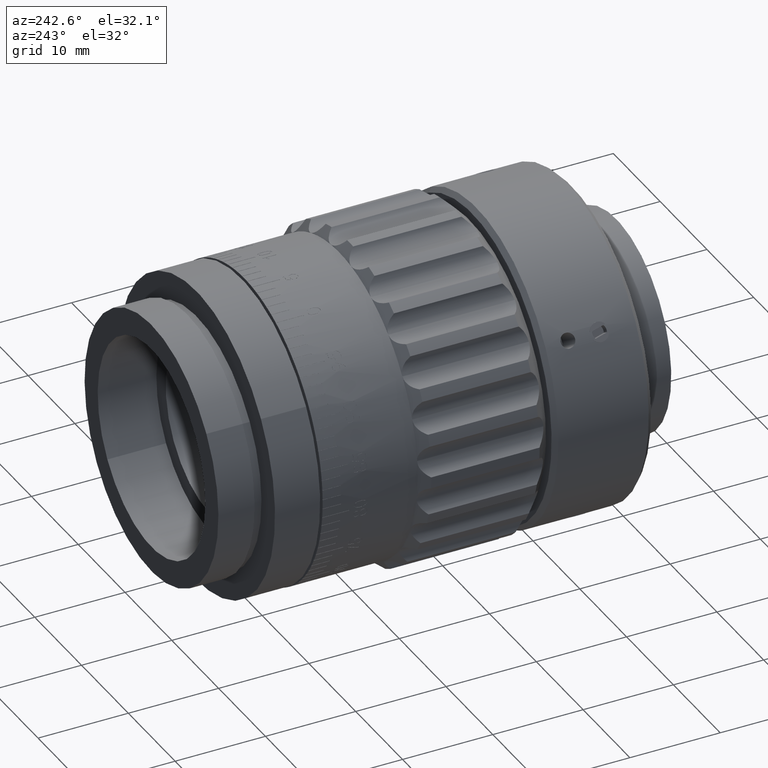
[diagram: clean part render]
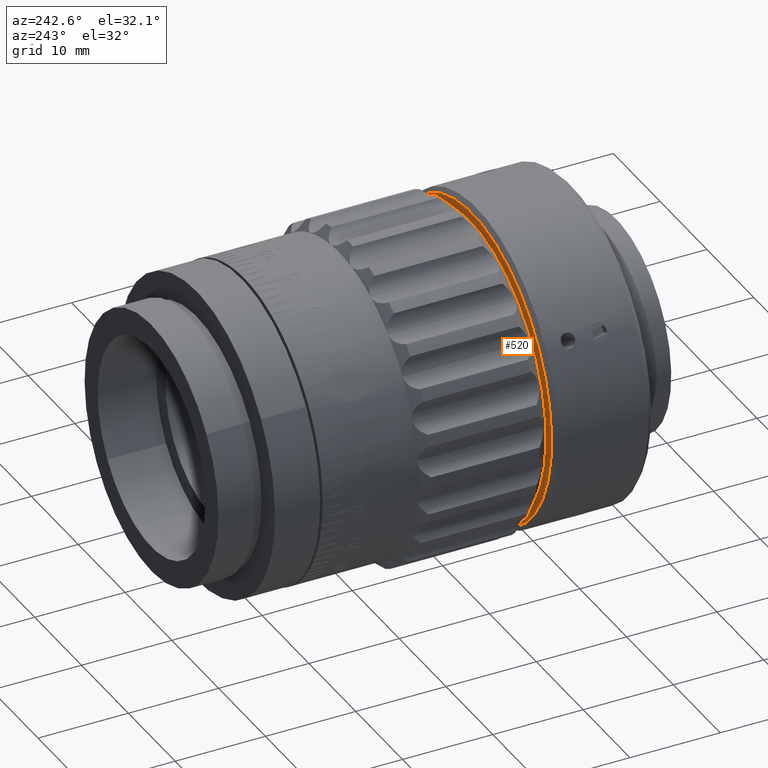
[diagram: same view with one face highlighted and labeled with its STEP entity id]
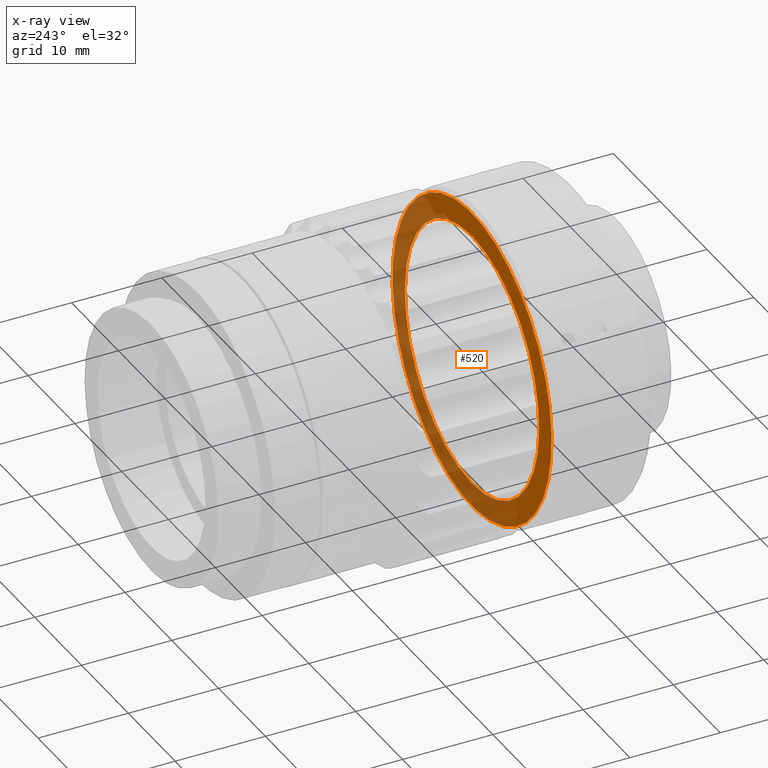
[diagram: x-ray of the same camera — body ghosted, the highlighted face saturated]
A machine part, auxiliary view. The second image highlights one B-rep face of the part: STEP entity #520.
The next image is the same camera in x-ray: the body ghosted, the highlighted face saturated — about 51% of this face is hidden behind the body in this view.
In plain terms, the highlighted planar face has unit normal (0, -1, 0).
Its self-contained STEP definition (entity closure, byte-faithful):
#502 = CARTESIAN_POINT ( 'NONE',  ( 0.0000000000000000000, 1.199999999999999700, 14.35000000000000300 ) ) ;
#520 = ADVANCED_FACE ( 'NONE', ( #24698, #58595 ), #74988, .F. ) ;
#1082 = VERTEX_POINT ( 'NONE', #85944 ) ;
#2420 = CIRCLE ( 'NONE', #3310, 17.00000000000001400 ) ;
#3310 = AXIS2_PLACEMENT_3D ( 'NONE', #89247, #46133, #97665 ) ;
#4077 = CARTESIAN_POINT ( 'NONE',  ( 0.0000000000000000000, 1.199999999999999700, 0.0000000000000000000 ) ) ;
#8227 = AXIS2_PLACEMENT_3D ( 'NONE', #4077, #46144, #69945 ) ;
#8988 = CARTESIAN_POINT ( 'NONE',  ( 0.0000000000000000000, 1.200000000000001500, -17.00000000000001400 ) ) ;
#10287 = CIRCLE ( 'NONE', #8227, 14.35000000000000300 ) ;
#10771 = VERTEX_POINT ( 'NONE', #79519 ) ;
#11331 = AXIS2_PLACEMENT_3D ( 'NONE', #21998, #80514, #97323 ) ;
#19343 = EDGE_LOOP ( 'NONE', ( #59925, #91340 ) ) ;
#21998 = CARTESIAN_POINT ( 'NONE',  ( 0.0000000000000000000, 1.200000000000001500, 0.0000000000000000000 ) ) ;
#22126 = CIRCLE ( 'NONE', #35004, 14.35000000000000300 ) ;
#24426 = CIRCLE ( 'NONE', #11331, 17.00000000000001400 ) ;
#24698 = FACE_OUTER_BOUND ( 'NONE', #19343, .T. ) ;
#35004 = AXIS2_PLACEMENT_3D ( 'NONE', #85175, #43863, #102331 ) ;
#38331 = VERTEX_POINT ( 'NONE', #502 ) ;
#43863 = DIRECTION ( 'NONE',  ( -0.0000000000000000000, 1.000000000000000000, -0.0000000000000000000 ) ) ;
#46133 = DIRECTION ( 'NONE',  ( -0.0000000000000000000, 1.000000000000000000, -0.0000000000000000000 ) ) ;
#46144 = DIRECTION ( 'NONE',  ( -0.0000000000000000000, 1.000000000000000000, -0.0000000000000000000 ) ) ;
#51168 = VERTEX_POINT ( 'NONE', #8988 ) ;
#52256 = DIRECTION ( 'NONE',  ( 0.0000000000000000000, -0.0000000000000000000, -1.000000000000000000 ) ) ;
#54839 = EDGE_CURVE ( 'NONE', #1082, #38331, #22126, .T. ) ;
#58595 = FACE_BOUND ( 'NONE', #104520, .T. ) ;
#59000 = EDGE_CURVE ( 'NONE', #51168, #10771, #24426, .T. ) ;
#59925 = ORIENTED_EDGE ( 'NONE', *, *, #59000, .T. ) ;
#69945 = DIRECTION ( 'NONE',  ( 0.0000000000000000000, 0.0000000000000000000, 1.000000000000000000 ) ) ;
#73928 = ORIENTED_EDGE ( 'NONE', *, *, #94800, .F. ) ;
#74988 = PLANE ( 'NONE',  #84955 ) ;
#79519 = CARTESIAN_POINT ( 'NONE',  ( 2.112515728529185200E-015, 1.200000000000001500, 17.00000000000001400 ) ) ;
#80514 = DIRECTION ( 'NONE',  ( -0.0000000000000000000, 1.000000000000000000, -0.0000000000000000000 ) ) ;
#83377 = CARTESIAN_POINT ( 'NONE',  ( 14.35000000000000300, 1.200000000000001500, 0.0000000000000000000 ) ) ;
#84955 = AXIS2_PLACEMENT_3D ( 'NONE', #83377, #101272, #52256 ) ;
#85175 = CARTESIAN_POINT ( 'NONE',  ( 0.0000000000000000000, 1.199999999999999700, 0.0000000000000000000 ) ) ;
#85944 = CARTESIAN_POINT ( 'NONE',  ( 1.757368156776452000E-015, 1.199999999999999700, -14.35000000000000300 ) ) ;
#89247 = CARTESIAN_POINT ( 'NONE',  ( 0.0000000000000000000, 1.200000000000001500, 0.0000000000000000000 ) ) ;
#91340 = ORIENTED_EDGE ( 'NONE', *, *, #93634, .T. ) ;
#92571 = ORIENTED_EDGE ( 'NONE', *, *, #54839, .F. ) ;
#93634 = EDGE_CURVE ( 'NONE', #10771, #51168, #2420, .T. ) ;
#94800 = EDGE_CURVE ( 'NONE', #38331, #1082, #10287, .T. ) ;
#97323 = DIRECTION ( 'NONE',  ( 0.0000000000000000000, 0.0000000000000000000, -1.000000000000000000 ) ) ;
#97665 = DIRECTION ( 'NONE',  ( 0.0000000000000000000, 0.0000000000000000000, -1.000000000000000000 ) ) ;
#101272 = DIRECTION ( 'NONE',  ( 0.0000000000000000000, -1.000000000000000000, 0.0000000000000000000 ) ) ;
#102331 = DIRECTION ( 'NONE',  ( 0.0000000000000000000, 0.0000000000000000000, 1.000000000000000000 ) ) ;
#104520 = EDGE_LOOP ( 'NONE', ( #73928, #92571 ) ) ;